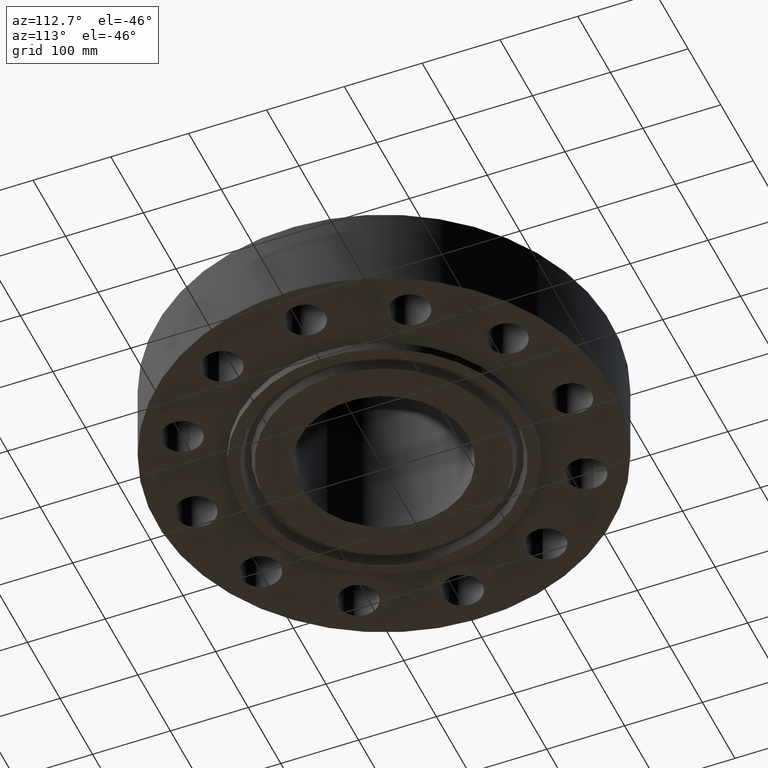
[diagram: clean part render]
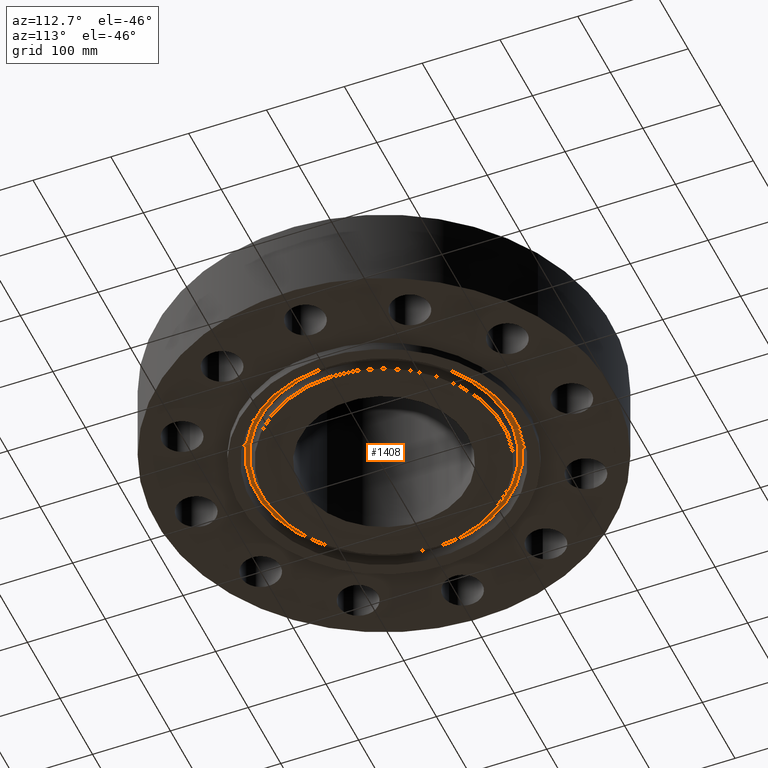
[diagram: same view with one face highlighted and labeled with its STEP entity id]
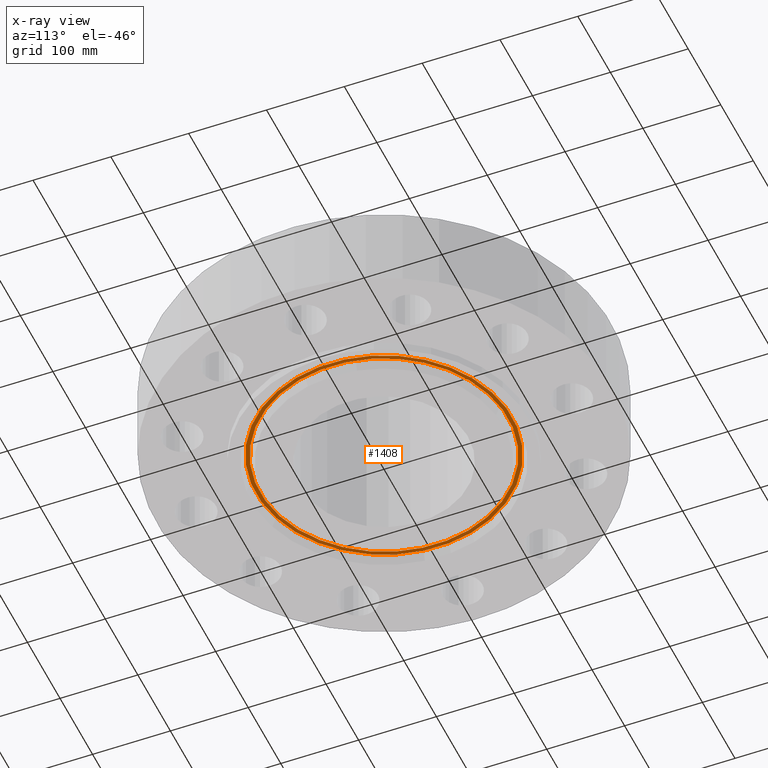
[diagram: x-ray of the same camera — body ghosted, the highlighted face saturated]
A machine part, auxiliary view. The second image highlights one B-rep face of the part: STEP entity #1408.
The next image is the same camera in x-ray: the body ghosted, the highlighted face saturated — about 0% of this face is hidden behind the body in this view.
In plain terms, the highlighted planar face has unit normal (0, 0, -1).
Its self-contained STEP definition (entity closure, byte-faithful):
#570=AXIS2_PLACEMENT_3D('Plane Axis2P3D',#567,#568,#569) ;
#1330=AXIS2_PLACEMENT_3D('Circle Axis2P3D',#1328,#1329,$) ;
#1376=AXIS2_PLACEMENT_3D('Circle Axis2P3D',#1374,#1375,$) ;
#1392=AXIS2_PLACEMENT_3D('Circle Axis2P3D',#1390,#1391,$) ;
#1401=AXIS2_PLACEMENT_3D('Circle Axis2P3D',#1399,#1400,$) ;
#567=CARTESIAN_POINT('Axis2P3D Location',(0.,7.31250000003,0.)) ;
#1325=CARTESIAN_POINT('Vertex',(-3.10446313874,5.68268165797,-7.86772222175E-017)) ;
#1328=CARTESIAN_POINT('Axis2P3D Location',(0.,0.,-7.86772222175E-017)) ;
#1332=CARTESIAN_POINT('Vertex',(3.10446313874,-5.68268165797,-7.86772222175E-017)) ;
#1374=CARTESIAN_POINT('Axis2P3D Location',(0.,0.,-7.86772222175E-017)) ;
#1390=CARTESIAN_POINT('Axis2P3D Location',(0.,0.,0.)) ;
#1394=CARTESIAN_POINT('Vertex',(3.00821247849,-5.50649600618,2.88483148131E-016)) ;
#1396=CARTESIAN_POINT('Vertex',(-3.00821247849,5.50649600618,2.88483148131E-016)) ;
#1399=CARTESIAN_POINT('Axis2P3D Location',(0.,0.,0.)) ;
#568=DIRECTION('Axis2P3D Direction',(0.,0.,-0.0393700787402)) ;
#569=DIRECTION('Axis2P3D XDirection',(0.0393700787402,0.,0.)) ;
#1329=DIRECTION('Axis2P3D Direction',(0.,0.,0.0393700787402)) ;
#1375=DIRECTION('Axis2P3D Direction',(0.,0.,0.0393700787402)) ;
#1391=DIRECTION('Axis2P3D Direction',(0.,0.,-0.0393700787402)) ;
#1400=DIRECTION('Axis2P3D Direction',(0.,0.,-0.0393700787402)) ;
#1387=ORIENTED_EDGE('',*,*,#1334,.F.) ;
#1388=ORIENTED_EDGE('',*,*,#1378,.F.) ;
#1405=ORIENTED_EDGE('',*,*,#1398,.T.) ;
#1406=ORIENTED_EDGE('',*,*,#1403,.T.) ;
#1407=FACE_BOUND('',#1404,.T.) ;
#1408=ADVANCED_FACE('PartBody',(#1389,#1407),#571,.T.) ;
#1331=CIRCLE('generated circle',#1330,6.47538124017) ;
#1377=CIRCLE('generated circle',#1376,6.47538124017) ;
#1393=CIRCLE('generated circle',#1392,6.27461875988) ;
#1402=CIRCLE('generated circle',#1401,6.27461875988) ;
#1334=EDGE_CURVE('',#1326,#1333,#1331,.T.) ;
#1378=EDGE_CURVE('',#1333,#1326,#1377,.T.) ;
#1398=EDGE_CURVE('',#1395,#1397,#1393,.F.) ;
#1403=EDGE_CURVE('',#1397,#1395,#1402,.F.) ;
#1386=EDGE_LOOP('',(#1387,#1388)) ;
#1404=EDGE_LOOP('',(#1405,#1406)) ;
#1389=FACE_OUTER_BOUND('',#1386,.T.) ;
#571=PLANE('',#570) ;
#1326=VERTEX_POINT('',#1325) ;
#1333=VERTEX_POINT('',#1332) ;
#1395=VERTEX_POINT('',#1394) ;
#1397=VERTEX_POINT('',#1396) ;